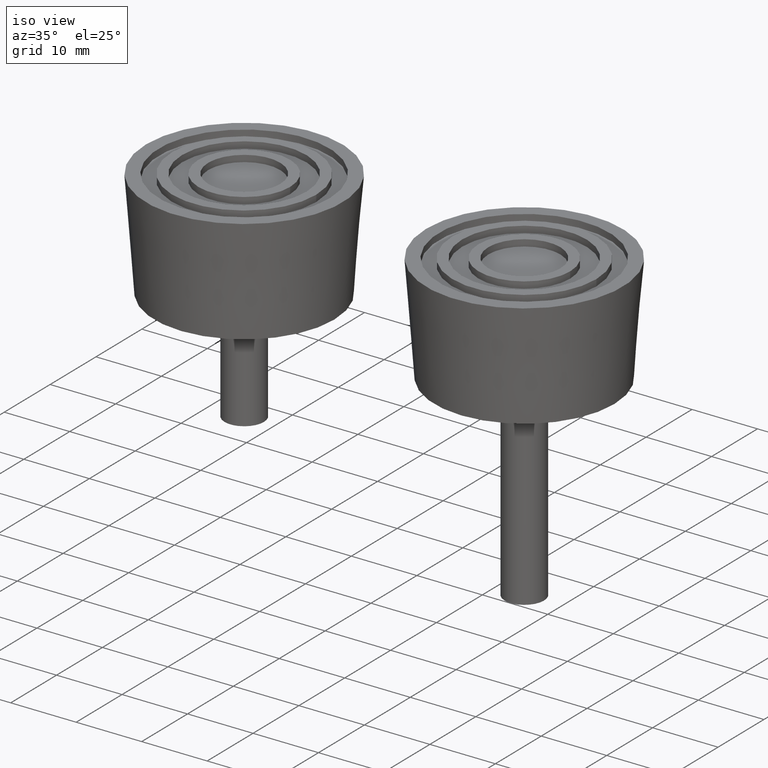
[diagram: clean part render]
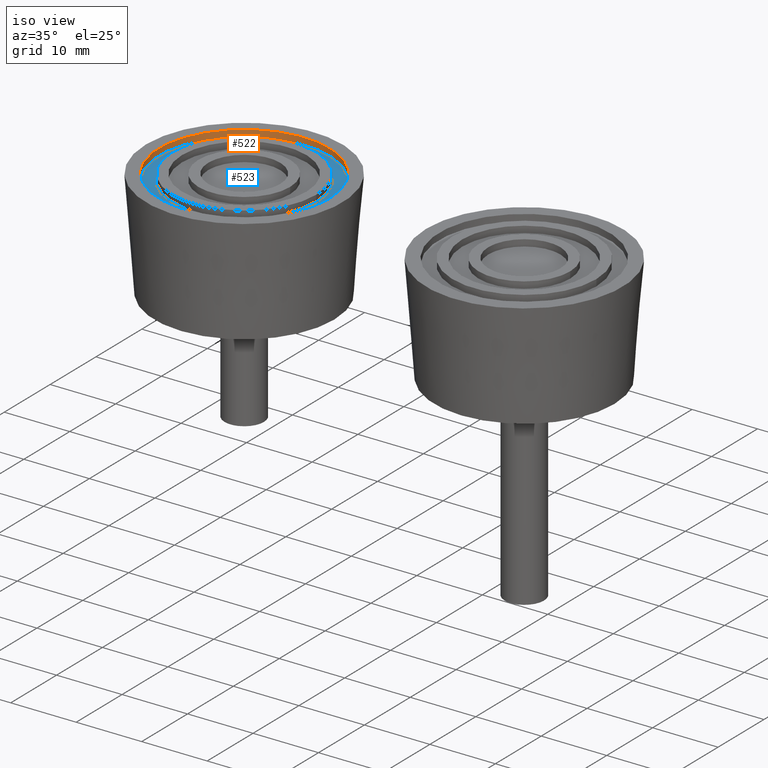
[diagram: same view with the hole feature highlighted: cylindrical wall and planar end face, labeled with their STEP entity ids]
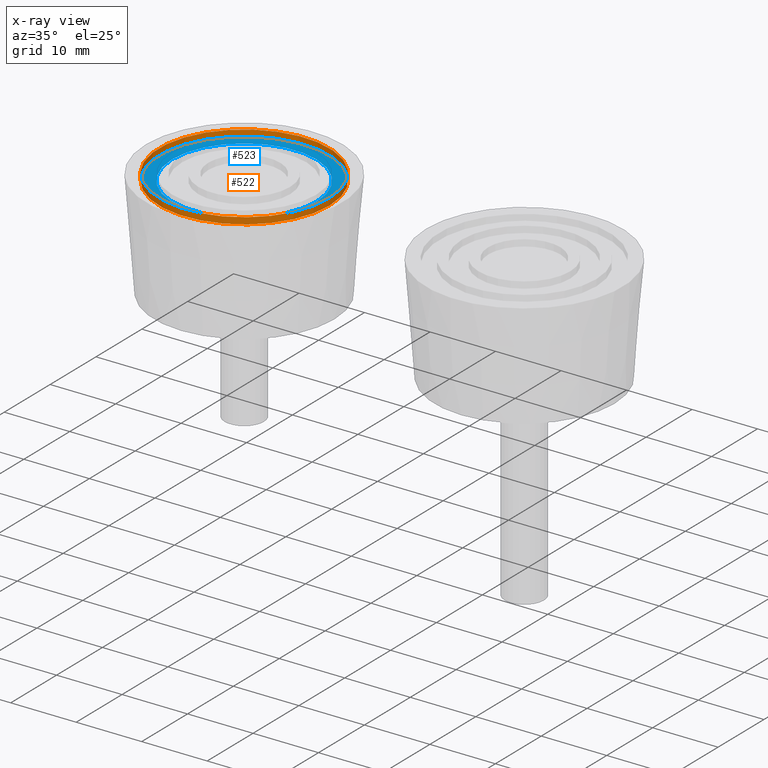
[diagram: x-ray of the same camera — body ghosted, the hole faces saturated]
A machine part, iso view. The highlighted faces form one hole feature of diameter 26 mm: the cylindrical wall (entity #522, orange) and its adjacent planar end face (entity #523, blue) — they share a circular edge in the B-rep.
The next image is the same camera in x-ray (body ghosted, the hole faces saturated) — the bore reads through the body.
Wall:
#67=FACE_BOUND('',#177,.T.);
#114=FACE_OUTER_BOUND('',#176,.T.);
#176=EDGE_LOOP('',(#416));
#177=EDGE_LOOP('',(#417));
#262=CIRCLE('',#591,13.);
#263=CIRCLE('',#592,13.);
#310=VERTEX_POINT('',#915);
#311=VERTEX_POINT('',#917);
#358=EDGE_CURVE('',#310,#310,#262,.T.);
#359=EDGE_CURVE('',#311,#311,#263,.T.);
#416=ORIENTED_EDGE('',*,*,#358,.T.);
#417=ORIENTED_EDGE('',*,*,#359,.F.);
#494=CYLINDRICAL_SURFACE('',#590,13.);
#522=ADVANCED_FACE('',(#114,#67),#494,.F.);
#590=AXIS2_PLACEMENT_3D('',#914,#722,#723);
#591=AXIS2_PLACEMENT_3D('',#916,#724,#725);
#592=AXIS2_PLACEMENT_3D('',#918,#726,#727);
#722=DIRECTION('center_axis',(0.,0.,-1.));
#723=DIRECTION('ref_axis',(-1.,0.,0.));
#724=DIRECTION('center_axis',(0.,0.,-1.));
#725=DIRECTION('ref_axis',(-1.,0.,0.));
#726=DIRECTION('center_axis',(0.,0.,-1.));
#727=DIRECTION('ref_axis',(-1.,0.,0.));
#914=CARTESIAN_POINT('Origin',(0.,0.,16.5));
#915=CARTESIAN_POINT('',(13.,1.59204083889156E-15,15.5));
#916=CARTESIAN_POINT('Origin',(0.,0.,15.5));
#917=CARTESIAN_POINT('',(13.,1.59204083889156E-15,16.5));
#918=CARTESIAN_POINT('Origin',(0.,0.,16.5));
End face:
#35=PLANE('',#593);
#68=FACE_BOUND('',#179,.T.);
#115=FACE_OUTER_BOUND('',#178,.T.);
#178=EDGE_LOOP('',(#418));
#179=EDGE_LOOP('',(#419));
#260=CIRCLE('',#588,11.);
#262=CIRCLE('',#591,13.);
#308=VERTEX_POINT('',#910);
#310=VERTEX_POINT('',#915);
#356=EDGE_CURVE('',#308,#308,#260,.T.);
#358=EDGE_CURVE('',#310,#310,#262,.T.);
#418=ORIENTED_EDGE('',*,*,#358,.F.);
#419=ORIENTED_EDGE('',*,*,#356,.F.);
#523=ADVANCED_FACE('',(#115,#68),#35,.T.);
#588=AXIS2_PLACEMENT_3D('',#911,#718,#719);
#591=AXIS2_PLACEMENT_3D('',#916,#724,#725);
#593=AXIS2_PLACEMENT_3D('',#919,#728,#729);
#718=DIRECTION('center_axis',(0.,0.,1.));
#719=DIRECTION('ref_axis',(-1.,0.,0.));
#724=DIRECTION('center_axis',(0.,0.,-1.));
#725=DIRECTION('ref_axis',(-1.,0.,0.));
#728=DIRECTION('center_axis',(0.,0.,1.));
#729=DIRECTION('ref_axis',(1.,0.,0.));
#910=CARTESIAN_POINT('',(11.,1.34711147906209E-15,15.5));
#911=CARTESIAN_POINT('Origin',(0.,0.,15.5));
#915=CARTESIAN_POINT('',(13.,1.59204083889156E-15,15.5));
#916=CARTESIAN_POINT('Origin',(0.,0.,15.5));
#919=CARTESIAN_POINT('Origin',(-1.3267006990763E-16,0.,15.5));